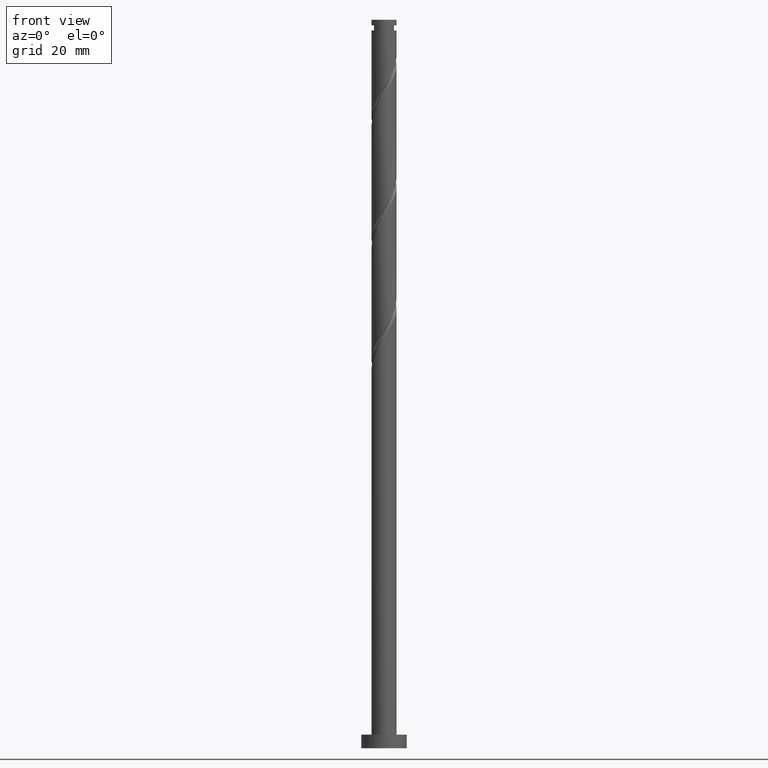
[diagram: clean part render]
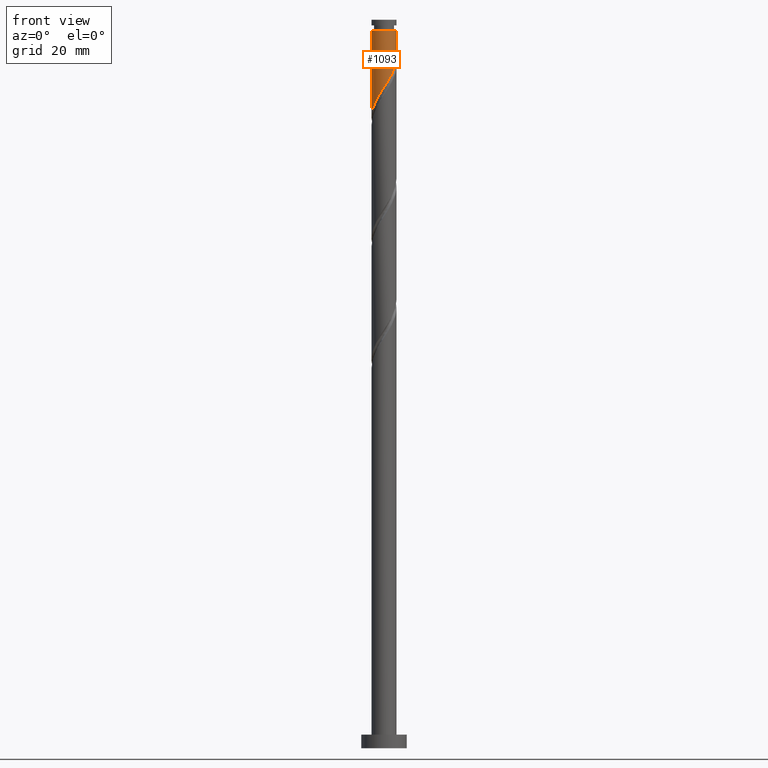
[diagram: same view with one face highlighted and labeled with its STEP entity id]
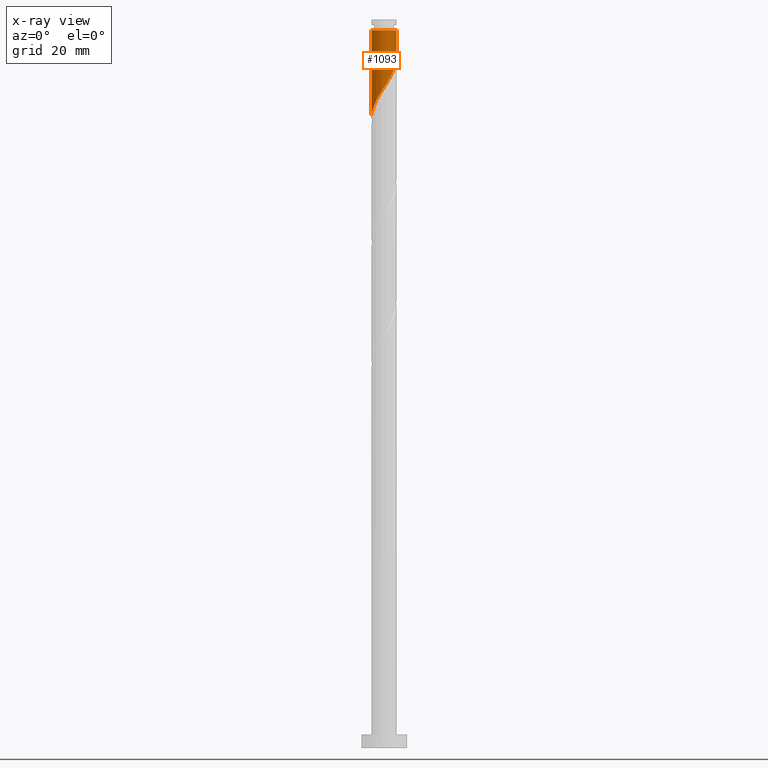
[diagram: x-ray of the same camera — body ghosted, the highlighted face saturated]
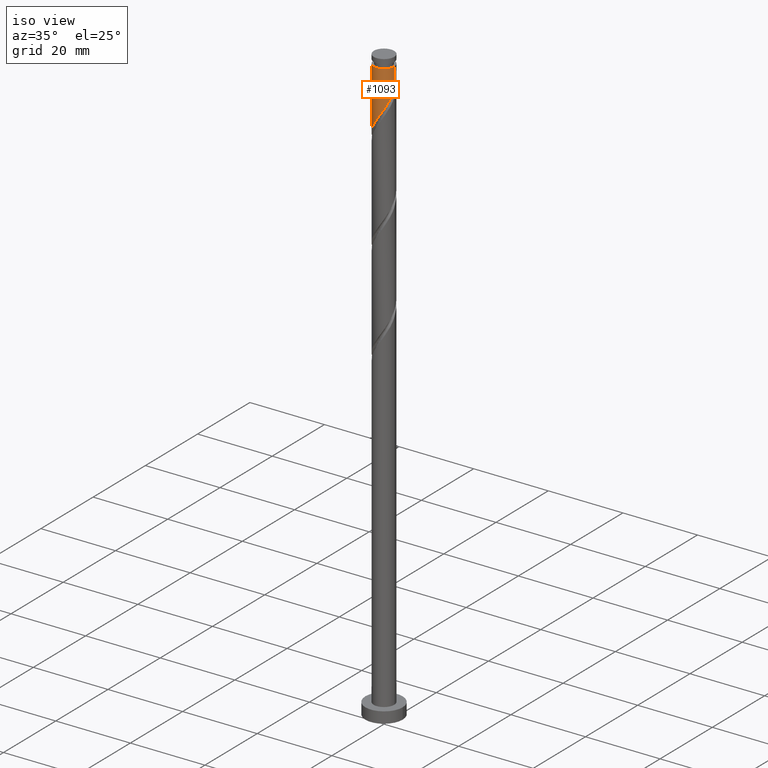
[diagram: same view with one face highlighted and labeled with its STEP entity id]
A machine part, front view. The second image highlights one B-rep face of the part: STEP entity #1093.
The next image is the same camera in x-ray: the body ghosted, the highlighted face saturated — about 0% of this face is hidden behind the body in this view.
A second angle (iso view) of the same face is appended — the face is thin or edge-on in the first view.
In plain terms, the highlighted cylindrical surface (edge-blend (fillet) strip) has radius 2.75 mm, axis along (-0, -0, -1).
Its self-contained STEP definition (entity closure, byte-faithful):
#24 = VECTOR ( 'NONE', #253, 1000.000000000000000 ) ;
#36 = CARTESIAN_POINT ( 'NONE',  ( 0.000000000000000000, 0.000000000000000000, 157.6615734514601570 ) ) ;
#74 = VECTOR ( 'NONE', #118, 1000.000000000000000 ) ;
#96 = VERTEX_POINT ( 'NONE', #1651 ) ;
#118 = DIRECTION ( 'NONE',  ( -0.000000000000000000, -0.000000000000000000, -1.000000000000000000 ) ) ;
#131 = CARTESIAN_POINT ( 'NONE',  ( 2.456662652402862523, -1.297552352829636879, 149.7827855726722817 ) ) ;
#151 = EDGE_CURVE ( 'NONE', #1217, #96, #1516, .T. ) ;
#205 = CARTESIAN_POINT ( 'NONE',  ( 2.749999999999992895, 3.367778697655216574E-16, 157.6615734514601570 ) ) ;
#221 = CARTESIAN_POINT ( 'NONE',  ( -0.1597605880921894872, -2.773681677939491941, 144.9343007241874091 ) ) ;
#225 = CARTESIAN_POINT ( 'NONE',  ( -2.749999999999992895, 0.000000000000000000, 157.6615734514601570 ) ) ;
#233 = VERTEX_POINT ( 'NONE', #225 ) ;
#250 = CARTESIAN_POINT ( 'NONE',  ( 2.745449597776792761, -0.1581344556611568586, 151.6009673908541231 ) ) ;
#253 = DIRECTION ( 'NONE',  ( -0.000000000000000000, -0.000000000000000000, -1.000000000000000000 ) ) ;
#274 = CARTESIAN_POINT ( 'NONE',  ( 1.365166370583078992, -2.419742605459064055, 147.3585431484298454 ) ) ;
#288 = AXIS2_PLACEMENT_3D ( 'NONE', #529, #779, #1569 ) ;
#296 = EDGE_CURVE ( 'NONE', #1479, #1217, #453, .T. ) ;
#306 = CARTESIAN_POINT ( 'NONE',  ( -2.750000000000000444, -7.852330869335618565E-16, 138.5110279307610313 ) ) ;
#317 = CARTESIAN_POINT ( 'NONE',  ( 0.2341933405814771163, -2.740009758965702868, 145.5403613302480323 ) ) ;
#322 = DIRECTION ( 'NONE',  ( -1.000000000000000000, 0.000000000000000000, 0.000000000000000000 ) ) ;
#359 = CARTESIAN_POINT ( 'NONE',  ( 2.750000000000001776, -0.07913269794050850625, 151.7222632593761773 ) ) ;
#360 = FACE_OUTER_BOUND ( 'NONE', #708, .T. ) ;
#453 = LINE ( 'NONE', #1386, #74 ) ;
#458 = CARTESIAN_POINT ( 'NONE',  ( -2.750000000000000888, -0.3149545503090840359, 138.9969878837323165 ) ) ;
#520 = CARTESIAN_POINT ( 'NONE',  ( 2.224125231963128169, -1.617333284312469699, 149.1767249666116300 ) ) ;
#529 = CARTESIAN_POINT ( 'NONE',  ( 0.000000000000000000, 0.000000000000000000, 160.0000000000000000 ) ) ;
#552 = CARTESIAN_POINT ( 'NONE',  ( 1.678377091053236514, -2.178428410627183176, 147.9646037544904118 ) ) ;
#573 = CARTESIAN_POINT ( 'NONE',  ( -0.9347255927250950336, -2.616318322060508628, 143.7221795120661909 ) ) ;
#633 = CIRCLE ( 'NONE', #1585, 2.749999999999992895 ) ;
#671 = CARTESIAN_POINT ( 'NONE',  ( 0.9966568199191119248, -2.563040222725489148, 146.7524825423691937 ) ) ;
#688 = CARTESIAN_POINT ( 'NONE',  ( -2.200829683470557629, -1.695636222896786949, 141.2979370878237830 ) ) ;
#708 = EDGE_LOOP ( 'NONE', ( #927, #1225, #978, #1468 ) ) ;
#721 = CARTESIAN_POINT ( 'NONE',  ( -2.589396545961872853, -1.006905667779018687, 140.0858158757025649 ) ) ;
#751 = CARTESIAN_POINT ( 'NONE',  ( 2.722713295520007737, -0.5528705150786894507, 150.9949067847934430 ) ) ;
#779 = DIRECTION ( 'NONE',  ( -0.000000000000000000, -0.000000000000000000, -1.000000000000000000 ) ) ;
#857 = CARTESIAN_POINT ( 'NONE',  ( -2.395113114716215463, -1.351270945337903040, 140.6918764817631882 ) ) ;
#914 = CARTESIAN_POINT ( 'NONE',  ( 1.991587811523394924, -1.937114215795302075, 148.5706643605510351 ) ) ;
#927 = ORIENTED_EDGE ( 'NONE', *, *, #296, .F. ) ;
#958 = CARTESIAN_POINT ( 'NONE',  ( -2.678791222997725985, -0.6217536357676975989, 139.4797552696419132 ) ) ;
#978 = ORIENTED_EDGE ( 'NONE', *, *, #1150, .T. ) ;
#1003 = CARTESIAN_POINT ( 'NONE',  ( 2.750000000000000444, 1.869602587937052732E-16, 151.8443612640943741 ) ) ;
#1093 = ADVANCED_FACE ( 'NONE', ( #360 ), #1421, .T. ) ;
#1126 = CARTESIAN_POINT ( 'NONE',  ( -1.633964688862560743, -2.246996415572367845, 142.5100582999449443 ) ) ;
#1150 = EDGE_CURVE ( 'NONE', #233, #96, #1553, .T. ) ;
#1174 = EDGE_CURVE ( 'NONE', #1479, #233, #633, .T. ) ;
#1214 = CARTESIAN_POINT ( 'NONE',  ( -1.284345140793827555, -2.431657368816438236, 143.1161189060055960 ) ) ;
#1217 = VERTEX_POINT ( 'NONE', #1003 ) ;
#1225 = ORIENTED_EDGE ( 'NONE', *, *, #1174, .T. ) ;
#1280 = CARTESIAN_POINT ( 'NONE',  ( 2.589687973961434686, -0.9252114339541632759, 150.3888461787328481 ) ) ;
#1348 = CARTESIAN_POINT ( 'NONE',  ( -0.5472430904086422743, -2.695000000000000284, 144.3282401181268426 ) ) ;
#1386 = CARTESIAN_POINT ( 'NONE',  ( 2.750000000000000000, 3.367778697655221012E-16, 160.0000000000000000 ) ) ;
#1403 = CARTESIAN_POINT ( 'NONE',  ( 2.750000000000000444, 1.869602587937052732E-16, 151.8443612640943741 ) ) ;
#1421 = CYLINDRICAL_SURFACE ( 'NONE', #288, 2.750000000000000000 ) ;
#1423 = CARTESIAN_POINT ( 'NONE',  ( -2.750000000000000000, 0.000000000000000000, 160.0000000000000000 ) ) ;
#1468 = ORIENTED_EDGE ( 'NONE', *, *, #151, .F. ) ;
#1479 = VERTEX_POINT ( 'NONE', #205 ) ;
#1516 =( BOUNDED_CURVE ( )  B_SPLINE_CURVE ( 2, ( #1403, #359, #250, #751, #1280, #131, #520, #914, #552, #274, #671, #1584, #317, #221, #1348, #573, #1214, #1126, #1629, #688, #857, #721, #958, #458, #306 ),
 .UNSPECIFIED., .F., .T. ) 
 B_SPLINE_CURVE_WITH_KNOTS ( ( 3, 2, 2, 2, 2, 2, 2, 2, 2, 2, 2, 2, 3 ),
 ( 0.3045252162417512176, 0.3068181818181818232, 0.3181818181818181768, 0.3295454545454545303, 0.3409090909090908839, 0.3522727272727272929, 0.3636363636363636465, 0.3750000000000000000, 0.3863636363636363535, 0.3977272727272727071, 0.4090909090909091161, 0.4204545454545454697, 0.4295252162417514397 ),
 .UNSPECIFIED. ) 
 CURVE ( )  GEOMETRIC_REPRESENTATION_ITEM ( )  RATIONAL_B_SPLINE_CURVE ( ( 0.9061101570135599026, 0.9072237824201420109, 0.9090909090909196077, 0.8998376744372220681, 0.9090909090909196077, 0.8998376744372220681, 0.9090909090909196077, 0.8998376744372220681, 0.9090909090909196077, 0.8998376744372220681, 0.9090909090909196077, 0.8998376744372220681, 0.9090909090909196077, 0.8998376744372220681, 0.9090909090909196077, 0.8998376744372220681, 0.9090909090909196077, 0.8998376744372220681, 0.9090909090909196077, 0.8998376744372220681, 0.9090909090909196077, 0.8998376744372220681, 0.9090909090909196077, 0.9017048011079994430, 0.9061101570135601246 ) ) 
 REPRESENTATION_ITEM ( '' )  );
#1553 = LINE ( 'NONE', #1423, #24 ) ;
#1569 = DIRECTION ( 'NONE',  ( -1.000000000000000000, 0.000000000000000000, 0.000000000000000000 ) ) ;
#1584 = CARTESIAN_POINT ( 'NONE',  ( 0.6281472692551450798, -2.706337839991913796, 146.1464219363086556 ) ) ;
#1585 = AXIS2_PLACEMENT_3D ( 'NONE', #36, #1588, #322 ) ;
#1588 = DIRECTION ( 'NONE',  ( -0.000000000000000000, -0.000000000000000000, -1.000000000000000000 ) ) ;
#1629 = CARTESIAN_POINT ( 'NONE',  ( -1.917397186166559520, -1.971316319234577064, 141.9039976938844063 ) ) ;
#1651 = CARTESIAN_POINT ( 'NONE',  ( -2.750000000000000444, -7.852330869335620537E-16, 138.5110279307610313 ) ) ;